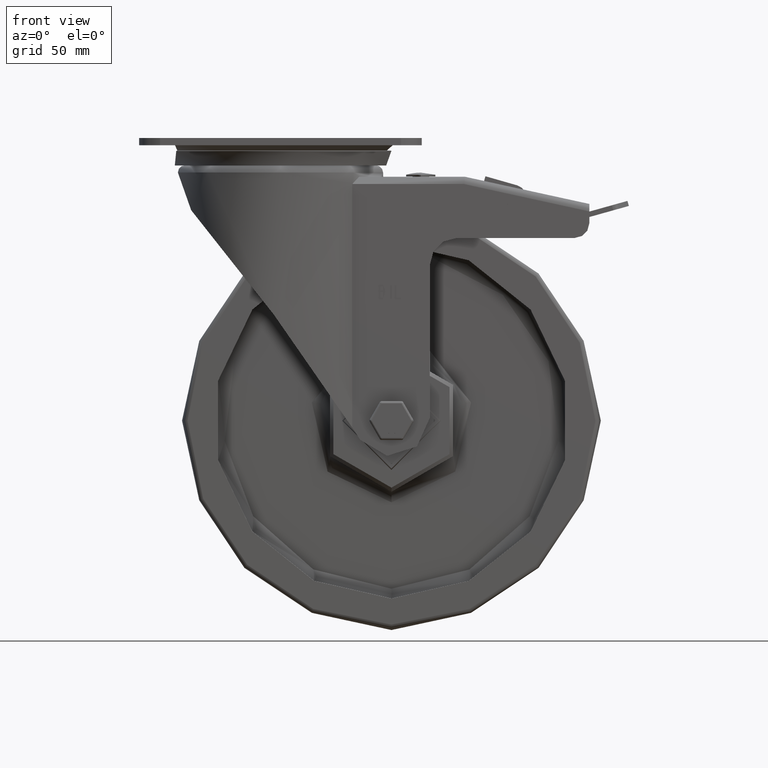
[diagram: clean part render]
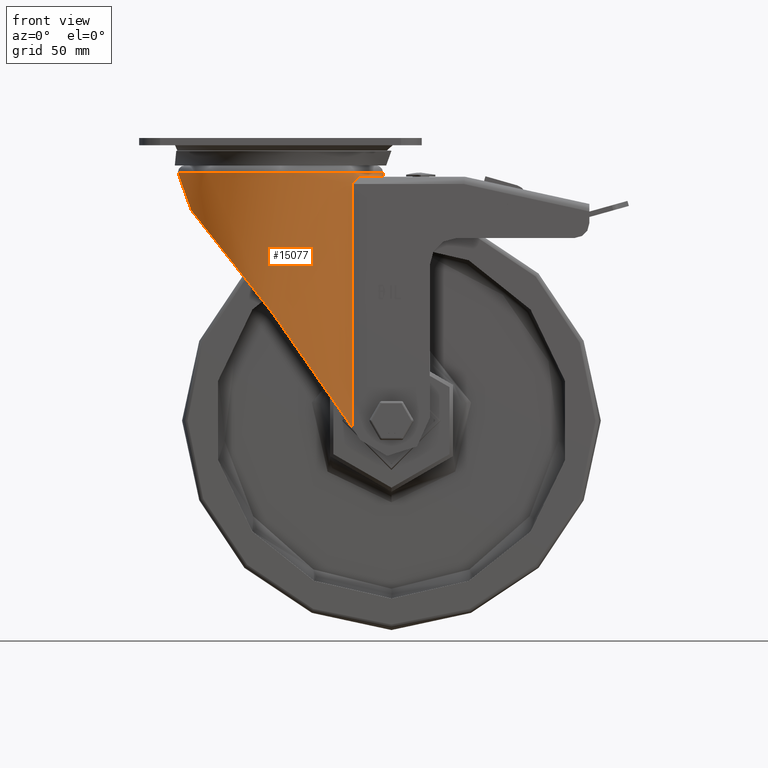
[diagram: same view with one face highlighted and labeled with its STEP entity id]
A machine part, front view. The second image highlights one B-rep face of the part: STEP entity #15077.
In plain terms, the highlighted cylindrical surface (bore or boss wall) has radius 49 mm, axis along (0, 0, -1).
Its self-contained STEP definition (entity closure, byte-faithful):
#622=B_SPLINE_CURVE_WITH_KNOTS('',3,(#29073,#29074,#29075,#29076,#29077,
#29078,#29079,#29080,#29081,#29082),.UNSPECIFIED.,.F.,.F.,(4,2,2,2,4),(-0.625228901705066,
-0.444294595247492,-0.263360288789919,-0.13168014439496,0.),
 .UNSPECIFIED.);
#623=B_SPLINE_CURVE_WITH_KNOTS('',3,(#29126,#29127,#29128,#29129,#29130,
#29131,#29132,#29133,#29134,#29135,#29136,#29137,#29138,#29139,#29140,#29141,
#29142,#29143,#29144,#29145,#29146,#29147,#29148,#29149,#29150,#29151,#29152,
#29153,#29154,#29155,#29156,#29157,#29158,#29159,#29160,#29161,#29162,#29163,
#29164,#29165,#29166,#29167,#29168,#29169,#29170,#29171,#29172,#29173,#29174,
#29175),.UNSPECIFIED.,.F.,.F.,(4,2,2,2,2,2,2,2,2,2,2,2,2,2,2,2,2,2,2,2,
2,2,2,2,4),(-34.4120068197338,-33.121356405522,-31.8297766614609,-29.2466171733387,
-26.6634576852165,-25.3933203126568,-24.123182940097,-22.8530455675372,
-21.5829081949775,-20.8116931009463,-20.0404780069151,-19.2692629128839,
-18.4980478188527,-17.7268327248215,-16.9556176307903,-16.184402536759,
-15.4131874427278,-14.1430500701681,-12.8729126976083,-11.6027753250486,
-10.3326379524888,-7.7494784643666,-5.1663189762444,-3.8747392321833,-2.58408881797157),
 .UNSPECIFIED.);
#624=B_SPLINE_CURVE_WITH_KNOTS('',3,(#29178,#29179,#29180,#29181,#29182,
#29183,#29184,#29185,#29186,#29187),.UNSPECIFIED.,.F.,.F.,(4,2,2,2,4),(1.22466606654213,
1.35634621093709,1.48802635533205,1.66896066178962,1.84989496824719),
 .UNSPECIFIED.);
#2410=FACE_OUTER_BOUND('',#3405,.T.);
#3405=EDGE_LOOP('',(#12488,#12489,#12490,#12491,#12492,#12493,#12494,#12495,
#12496,#12497));
#4350=LINE('',#29124,#5413);
#4351=LINE('',#29177,#5414);
#4352=LINE('',#29189,#5415);
#5413=VECTOR('',#19172,10.);
#5414=VECTOR('',#19173,10.);
#5415=VECTOR('',#19174,49.);
#6292=CIRCLE('',#16509,49.);
#6293=CIRCLE('',#16510,49.);
#6294=CIRCLE('',#16512,49.);
#7306=VERTEX_POINT('',#29070);
#7307=VERTEX_POINT('',#29072);
#7321=VERTEX_POINT('',#29117);
#7322=VERTEX_POINT('',#29119);
#7323=VERTEX_POINT('',#29123);
#7324=VERTEX_POINT('',#29125);
#7325=VERTEX_POINT('',#29176);
#7326=VERTEX_POINT('',#29188);
#9116=EDGE_CURVE('',#7306,#7307,#622,.F.);
#9135=EDGE_CURVE('',#7321,#7307,#6292,.T.);
#9136=EDGE_CURVE('',#7322,#7321,#6293,.T.);
#9138=EDGE_CURVE('',#7306,#7323,#4350,.T.);
#9139=EDGE_CURVE('',#7323,#7324,#623,.T.);
#9140=EDGE_CURVE('',#7324,#7325,#4351,.T.);
#9141=EDGE_CURVE('',#7322,#7325,#624,.F.);
#9142=EDGE_CURVE('',#7321,#7326,#4352,.T.);
#9143=EDGE_CURVE('',#7326,#7326,#6294,.T.);
#12488=ORIENTED_EDGE('',*,*,#9138,.T.);
#12489=ORIENTED_EDGE('',*,*,#9139,.T.);
#12490=ORIENTED_EDGE('',*,*,#9140,.T.);
#12491=ORIENTED_EDGE('',*,*,#9141,.F.);
#12492=ORIENTED_EDGE('',*,*,#9136,.T.);
#12493=ORIENTED_EDGE('',*,*,#9142,.T.);
#12494=ORIENTED_EDGE('',*,*,#9143,.F.);
#12495=ORIENTED_EDGE('',*,*,#9142,.F.);
#12496=ORIENTED_EDGE('',*,*,#9135,.T.);
#12497=ORIENTED_EDGE('',*,*,#9116,.F.);
#14461=CYLINDRICAL_SURFACE('',#16511,49.);
#15077=ADVANCED_FACE('',(#2410),#14461,.T.);
#16509=AXIS2_PLACEMENT_3D('',#29118,#19165,#19166);
#16510=AXIS2_PLACEMENT_3D('',#29120,#19167,#19168);
#16511=AXIS2_PLACEMENT_3D('',#29122,#19170,#19171);
#16512=AXIS2_PLACEMENT_3D('',#29190,#19175,#19176);
#19165=DIRECTION('center_axis',(0.,0.,1.));
#19166=DIRECTION('ref_axis',(-1.,0.,0.));
#19167=DIRECTION('center_axis',(0.,0.,1.));
#19168=DIRECTION('ref_axis',(-1.,0.,0.));
#19170=DIRECTION('center_axis',(0.,0.,-1.));
#19171=DIRECTION('ref_axis',(-1.,0.,0.));
#19172=DIRECTION('',(0.,0.,-1.));
#19173=DIRECTION('',(0.,0.,1.));
#19174=DIRECTION('',(0.,0.,1.));
#19175=DIRECTION('center_axis',(0.,0.,1.));
#19176=DIRECTION('ref_axis',(1.,1.22464679914735E-16,0.));
#29070=CARTESIAN_POINT('',(34.2928563989645,35.,-22.));
#29072=CARTESIAN_POINT('',(37.5333185316726,31.5,-18.5));
#29073=CARTESIAN_POINT('Ctrl Pts',(37.5333185316726,31.5,-18.5));
#29074=CARTESIAN_POINT('Ctrl Pts',(37.1456021606921,31.9619772079986,-18.5));
#29075=CARTESIAN_POINT('Ctrl Pts',(36.7179669053213,32.4525501720949,-18.5956480322589));
#29076=CARTESIAN_POINT('Ctrl Pts',(35.8931427874258,33.362544974747,-18.9953552198696));
#29077=CARTESIAN_POINT('Ctrl Pts',(35.4960317121137,33.7824137014867,-19.2985568964875));
#29078=CARTESIAN_POINT('Ctrl Pts',(34.9320772658024,34.3637362242783,-19.9542122133705));
#29079=CARTESIAN_POINT('Ctrl Pts',(34.7032505279086,34.5938646742957,-20.3075091762502));
#29080=CARTESIAN_POINT('Ctrl Pts',(34.3826891024557,34.9124871605522,-21.1103626702354));
#29081=CARTESIAN_POINT('Ctrl Pts',(34.2928563989645,35.,-21.5610661853501));
#29082=CARTESIAN_POINT('Ctrl Pts',(34.2928563989645,35.,-22.));
#29117=CARTESIAN_POINT('',(49.,-6.00076931582203E-15,-18.5));
#29118=CARTESIAN_POINT('Origin',(0.,0.,-18.5));
#29119=CARTESIAN_POINT('',(37.5333185316726,-31.5,-18.5));
#29120=CARTESIAN_POINT('Origin',(0.,0.,-18.5));
#29122=CARTESIAN_POINT('Origin',(0.,0.,-13.));
#29123=CARTESIAN_POINT('',(34.2928563989918,34.9999999999891,-138.425804429333));
#29124=CARTESIAN_POINT('',(34.2928563989645,35.,-13.));
#29125=CARTESIAN_POINT('',(34.2928563989918,-34.9999999999891,-138.425804429333));
#29126=CARTESIAN_POINT('Ctrl Pts',(34.2928563989876,34.9999999999774,-138.425804429328));
#29127=CARTESIAN_POINT('Ctrl Pts',(32.2538856490501,36.9977751751027,-135.282019397846));
#29128=CARTESIAN_POINT('Ctrl Pts',(30.1032807901154,38.7586432030209,-132.003324825447));
#29129=CARTESIAN_POINT('Ctrl Pts',(25.6139473405629,41.8613945871662,-125.248462476776));
#29130=CARTESIAN_POINT('Ctrl Pts',(23.2748903933643,43.2020224765733,-121.771845343413));
#29131=CARTESIAN_POINT('Ctrl Pts',(16.0235733843273,46.6131544903223,-111.139798905136));
#29132=CARTESIAN_POINT('Ctrl Pts',(10.9038309000844,48.0584606433874,-103.825647254466));
#29133=CARTESIAN_POINT('Ctrl Pts',(0.485070609769471,49.277518944835,-89.3489361436049));
#29134=CARTESIAN_POINT('Ctrl Pts',(-4.81409558714125,49.0473378744351,-82.1861525379713));
#29135=CARTESIAN_POINT('Ctrl Pts',(-12.5167341274851,47.4453011114139,-72.0333466357436));
#29136=CARTESIAN_POINT('Ctrl Pts',(-15.1766436726071,46.6797262276463,-68.5702429239683));
#29137=CARTESIAN_POINT('Ctrl Pts',(-20.5508696216654,44.5756560454426,-61.6655948654499));
#29138=CARTESIAN_POINT('Ctrl Pts',(-23.2651620509435,43.2371067401469,-58.2240483158236));
#29139=CARTESIAN_POINT('Ctrl Pts',(-28.5561615277787,39.9407173630937,-51.5978458034889));
#29140=CARTESIAN_POINT('Ctrl Pts',(-31.1338935548524,37.982292476726,-48.4117220223424));
#29141=CARTESIAN_POINT('Ctrl Pts',(-35.962869987624,33.4461634923415,-42.5061510380744));
#29142=CARTESIAN_POINT('Ctrl Pts',(-38.2141078206829,30.8688294649591,-39.7864142148577));
#29143=CARTESIAN_POINT('Ctrl Pts',(-41.4225261030982,26.2616300337113,-35.9417949009816));
#29144=CARTESIAN_POINT('Ctrl Pts',(-42.6101879953735,24.3116702229906,-34.52696715018));
#29145=CARTESIAN_POINT('Ctrl Pts',(-44.7693634603241,20.0596492007216,-31.9666965445606));
#29146=CARTESIAN_POINT('Ctrl Pts',(-45.7403882367072,17.7571042945652,-30.8216448355646));
#29147=CARTESIAN_POINT('Ctrl Pts',(-47.3360343930887,12.9150255701949,-28.9456808192258));
#29148=CARTESIAN_POINT('Ctrl Pts',(-47.9616604315939,10.3701433527348,-28.2133971061128));
#29149=CARTESIAN_POINT('Ctrl Pts',(-48.7938612082863,5.19806245894011,-27.240352916525));
#29150=CARTESIAN_POINT('Ctrl Pts',(-49.0000000000001,2.57071698010402,-27.0000000000044));
#29151=CARTESIAN_POINT('Ctrl Pts',(-49.0000000000001,-2.57071698010402,
-27.0000000000044));
#29152=CARTESIAN_POINT('Ctrl Pts',(-48.7938612082863,-5.19806245894012,
-27.240352916525));
#29153=CARTESIAN_POINT('Ctrl Pts',(-47.9616604315939,-10.3701433527349,
-28.2133971061128));
#29154=CARTESIAN_POINT('Ctrl Pts',(-47.3360343930887,-12.9150255701949,
-28.9456808192258));
#29155=CARTESIAN_POINT('Ctrl Pts',(-45.7403882367072,-17.7571042945652,
-30.8216448355646));
#29156=CARTESIAN_POINT('Ctrl Pts',(-44.7693634603241,-20.0596492007216,
-31.9666965445606));
#29157=CARTESIAN_POINT('Ctrl Pts',(-42.6101879953735,-24.3116702229906,
-34.52696715018));
#29158=CARTESIAN_POINT('Ctrl Pts',(-41.4225261030982,-26.2616300337114,
-35.9417949009816));
#29159=CARTESIAN_POINT('Ctrl Pts',(-38.2141078206829,-30.8688294649591,
-39.7864142148577));
#29160=CARTESIAN_POINT('Ctrl Pts',(-35.962869987624,-33.4461634923415,-42.5061510380744));
#29161=CARTESIAN_POINT('Ctrl Pts',(-31.1338935548524,-37.982292476726,-48.4117220223424));
#29162=CARTESIAN_POINT('Ctrl Pts',(-28.5561615277787,-39.9407173630937,
-51.5978458034889));
#29163=CARTESIAN_POINT('Ctrl Pts',(-23.2651620509435,-43.2371067401469,
-58.2240483158236));
#29164=CARTESIAN_POINT('Ctrl Pts',(-20.5508696216654,-44.5756560454426,
-61.6655948654499));
#29165=CARTESIAN_POINT('Ctrl Pts',(-15.1766436726071,-46.6797262276463,
-68.5702429239683));
#29166=CARTESIAN_POINT('Ctrl Pts',(-12.5167341274852,-47.4453011114139,
-72.0333466357436));
#29167=CARTESIAN_POINT('Ctrl Pts',(-4.81409558714124,-49.0473378744351,
-82.1861525379713));
#29168=CARTESIAN_POINT('Ctrl Pts',(0.485070609769472,-49.277518944835,-89.3489361436049));
#29169=CARTESIAN_POINT('Ctrl Pts',(10.9038309000844,-48.0584606433874,-103.825647254466));
#29170=CARTESIAN_POINT('Ctrl Pts',(16.0235733843273,-46.6131544903223,-111.139798905136));
#29171=CARTESIAN_POINT('Ctrl Pts',(23.2748903933643,-43.2020224765733,-121.771845343413));
#29172=CARTESIAN_POINT('Ctrl Pts',(25.6139473405629,-41.8613945871662,-125.248462476776));
#29173=CARTESIAN_POINT('Ctrl Pts',(30.1032807901154,-38.7586432030209,-132.003324825447));
#29174=CARTESIAN_POINT('Ctrl Pts',(32.2538856490501,-36.9977751751027,-135.282019397846));
#29175=CARTESIAN_POINT('Ctrl Pts',(34.2928563989876,-34.9999999999774,-138.425804429328));
#29176=CARTESIAN_POINT('',(34.2928563989645,-35.,-22.));
#29177=CARTESIAN_POINT('',(34.2928563989645,-35.,-13.));
#29178=CARTESIAN_POINT('Ctrl Pts',(34.2928563989645,-35.,-22.));
#29179=CARTESIAN_POINT('Ctrl Pts',(34.2928563989645,-35.,-21.5610661853501));
#29180=CARTESIAN_POINT('Ctrl Pts',(34.3826891024557,-34.9124871605522,-21.1103626702354));
#29181=CARTESIAN_POINT('Ctrl Pts',(34.7032505279086,-34.5938646742957,-20.3075091762503));
#29182=CARTESIAN_POINT('Ctrl Pts',(34.9320772658024,-34.3637362242783,-19.9542122133705));
#29183=CARTESIAN_POINT('Ctrl Pts',(35.4960317121137,-33.7824137014867,-19.2985568964876));
#29184=CARTESIAN_POINT('Ctrl Pts',(35.8931427874258,-33.362544974747,-18.9953552198696));
#29185=CARTESIAN_POINT('Ctrl Pts',(36.7179669053213,-32.4525501720949,-18.595648032259));
#29186=CARTESIAN_POINT('Ctrl Pts',(37.1456021606921,-31.9619772079986,-18.5));
#29187=CARTESIAN_POINT('Ctrl Pts',(37.5333185316726,-31.5,-18.5));
#29188=CARTESIAN_POINT('',(49.,6.00076931582203E-15,-16.5));
#29189=CARTESIAN_POINT('',(49.,-6.00076931582203E-15,-13.));
#29190=CARTESIAN_POINT('Origin',(0.,0.,-16.5));